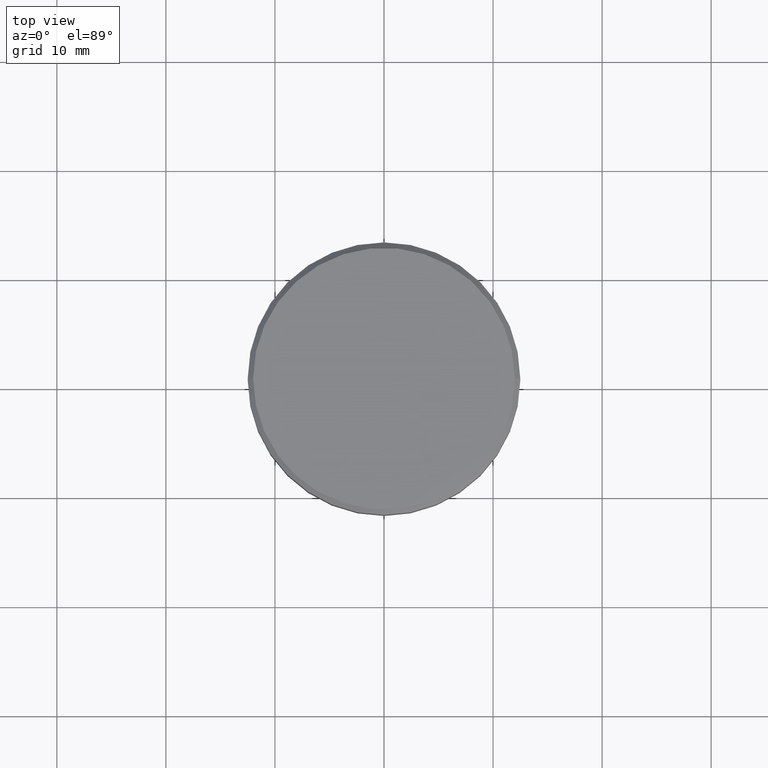
[diagram: clean part render]
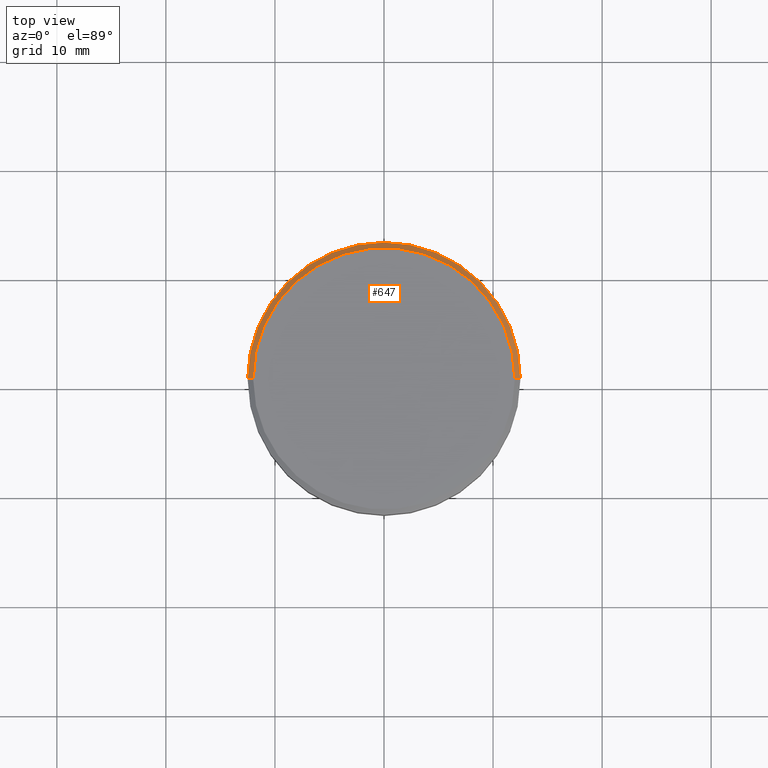
[diagram: same view with one face highlighted and labeled with its STEP entity id]
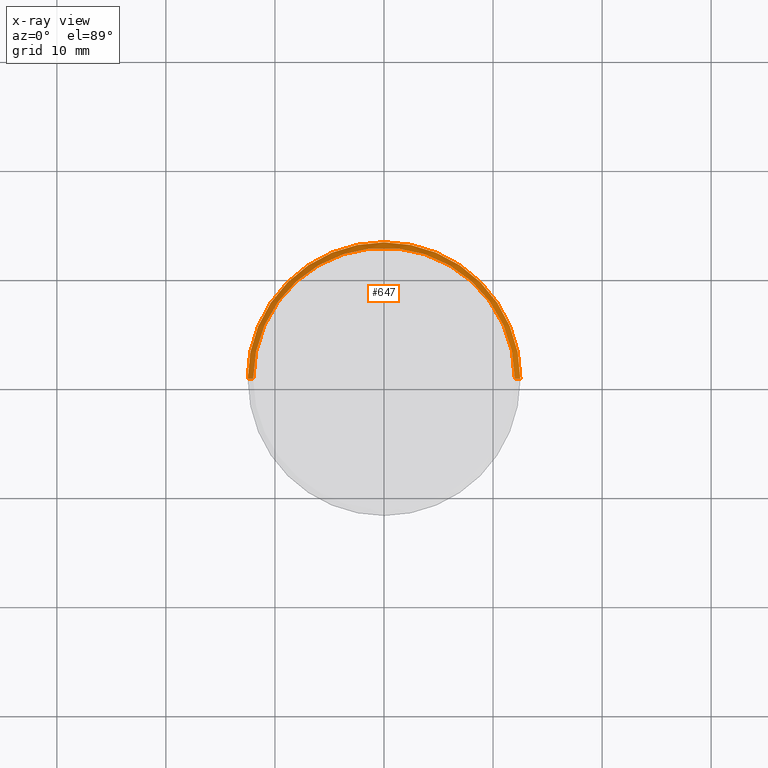
[diagram: x-ray of the same camera — body ghosted, the highlighted face saturated]
A machine part, top view. The second image highlights one B-rep face of the part: STEP entity #647.
The next image is the same camera in x-ray: the body ghosted, the highlighted face saturated — about 0% of this face is hidden behind the body in this view.
In plain terms, the highlighted conical surface has half-angle 45 deg.
Its self-contained STEP definition (entity closure, byte-faithful):
#24 = VERTEX_POINT ( 'NONE', #1036 ) ;
#32 = DIRECTION ( 'NONE',  ( -0.000000000000000000, -0.000000000000000000, 1.000000000000000000 ) ) ;
#73 = EDGE_CURVE ( 'NONE', #941, #645, #310, .T. ) ;
#84 = EDGE_CURVE ( 'NONE', #645, #661, #884, .T. ) ;
#165 = LINE ( 'NONE', #891, #315 ) ;
#188 = EDGE_LOOP ( 'NONE', ( #1128, #304, #283, #432 ) ) ;
#247 = DIRECTION ( 'NONE',  ( 0.7071067811865463515, 8.659560562354919300E-17, -0.7071067811865487940 ) ) ;
#263 = DIRECTION ( 'NONE',  ( 0.000000000000000000, 0.000000000000000000, -1.000000000000000000 ) ) ;
#283 = ORIENTED_EDGE ( 'NONE', *, *, #330, .F. ) ;
#298 = DIRECTION ( 'NONE',  ( -1.000000000000000000, 0.000000000000000000, 0.000000000000000000 ) ) ;
#304 = ORIENTED_EDGE ( 'NONE', *, *, #826, .T. ) ;
#310 = CIRCLE ( 'NONE', #1173, 12.00000000000001066 ) ;
#315 = VECTOR ( 'NONE', #247, 1000.000000000000000 ) ;
#330 = EDGE_CURVE ( 'NONE', #661, #24, #973, .T. ) ;
#333 = DIRECTION ( 'NONE',  ( -0.7071067811865463515, 0.000000000000000000, -0.7071067811865487940 ) ) ;
#387 = CARTESIAN_POINT ( 'NONE',  ( -12.50000000000000000, 1.530808498934191521E-15, -0.4999999999999917843 ) ) ;
#432 = ORIENTED_EDGE ( 'NONE', *, *, #84, .F. ) ;
#455 = AXIS2_PLACEMENT_3D ( 'NONE', #809, #263, #905 ) ;
#478 = CARTESIAN_POINT ( 'NONE',  ( 12.00000000000001066, 1.500192328955508326E-15, 0.000000000000000000 ) ) ;
#481 = CARTESIAN_POINT ( 'NONE',  ( -12.00000000000001066, 0.000000000000000000, 0.000000000000000000 ) ) ;
#492 = CARTESIAN_POINT ( 'NONE',  ( 0.000000000000000000, 0.000000000000000000, 0.000000000000000000 ) ) ;
#497 = FACE_OUTER_BOUND ( 'NONE', #188, .T. ) ;
#645 = VERTEX_POINT ( 'NONE', #481 ) ;
#647 = ADVANCED_FACE ( 'NONE', ( #497 ), #988, .T. ) ;
#661 = VERTEX_POINT ( 'NONE', #387 ) ;
#686 = VECTOR ( 'NONE', #333, 1000.000000000000000 ) ;
#758 = CARTESIAN_POINT ( 'NONE',  ( 0.000000000000000000, 0.000000000000000000, 0.000000000000000000 ) ) ;
#777 = AXIS2_PLACEMENT_3D ( 'NONE', #758, #849, #298 ) ;
#809 = CARTESIAN_POINT ( 'NONE',  ( 0.000000000000000000, 0.000000000000000000, -0.4999999999999917843 ) ) ;
#826 = EDGE_CURVE ( 'NONE', #941, #24, #165, .T. ) ;
#849 = DIRECTION ( 'NONE',  ( 0.000000000000000000, 0.000000000000000000, -1.000000000000000000 ) ) ;
#884 = LINE ( 'NONE', #1147, #686 ) ;
#891 = CARTESIAN_POINT ( 'NONE',  ( 12.00000000000001066, 1.469576158976825131E-15, 0.000000000000000000 ) ) ;
#905 = DIRECTION ( 'NONE',  ( 1.000000000000000000, 0.000000000000000000, 0.000000000000000000 ) ) ;
#941 = VERTEX_POINT ( 'NONE', #478 ) ;
#973 = CIRCLE ( 'NONE', #455, 12.50000000000000000 ) ;
#988 = CONICAL_SURFACE ( 'NONE', #777, 12.00000000000001066, 0.7853981633974466137 ) ;
#1036 = CARTESIAN_POINT ( 'NONE',  ( 12.50000000000000000, 0.000000000000000000, -0.4999999999999917843 ) ) ;
#1128 = ORIENTED_EDGE ( 'NONE', *, *, #73, .F. ) ;
#1143 = DIRECTION ( 'NONE',  ( 1.000000000000000000, 0.000000000000000000, 0.000000000000000000 ) ) ;
#1147 = CARTESIAN_POINT ( 'NONE',  ( -12.00000000000001066, 0.000000000000000000, 0.000000000000000000 ) ) ;
#1173 = AXIS2_PLACEMENT_3D ( 'NONE', #492, #32, #1143 ) ;